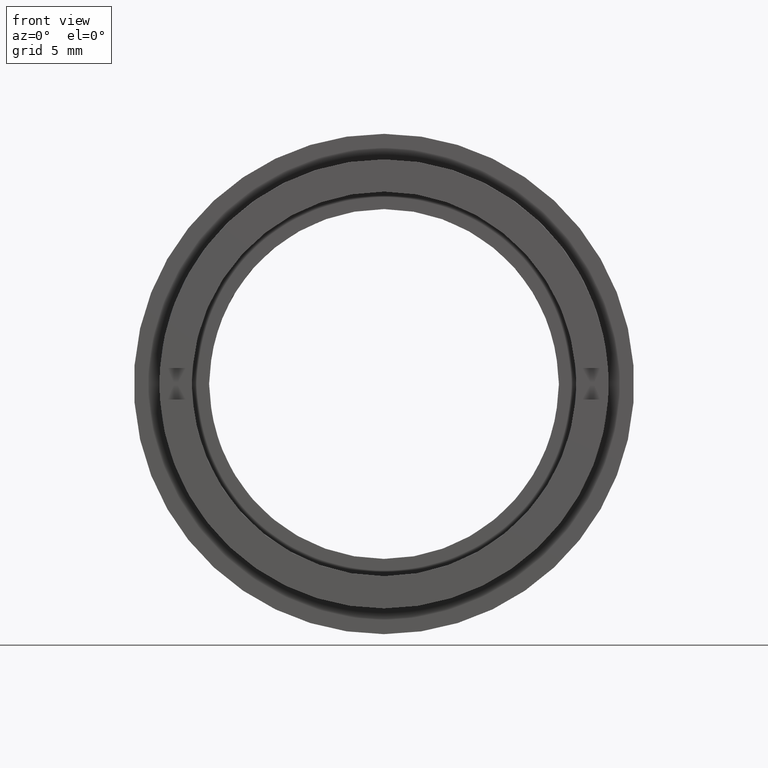
[diagram: clean part render]
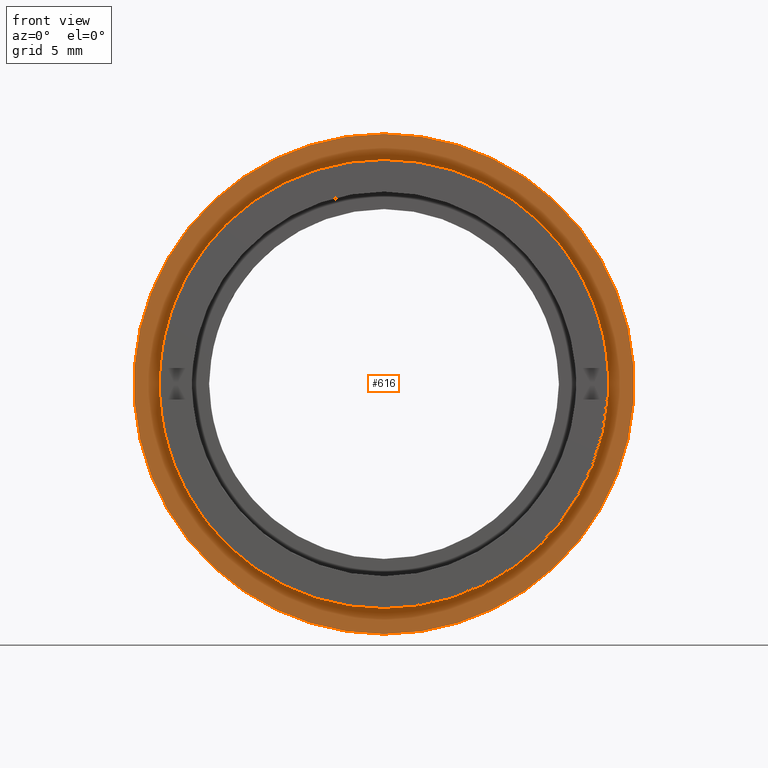
[diagram: same view with one face highlighted and labeled with its STEP entity id]
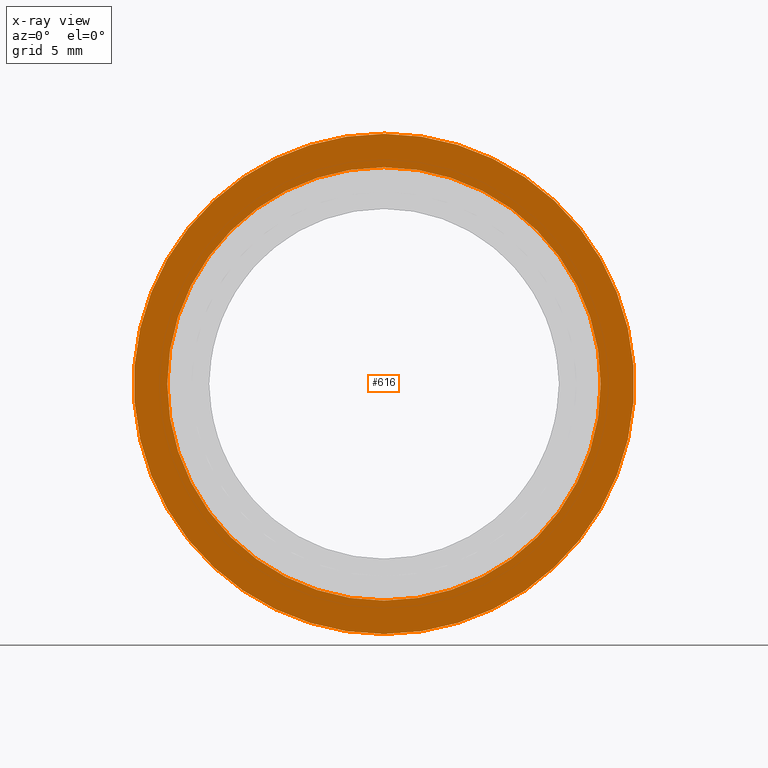
[diagram: x-ray of the same camera — body ghosted, the highlighted face saturated]
A machine part, front view. The second image highlights one B-rep face of the part: STEP entity #616.
The next image is the same camera in x-ray: the body ghosted, the highlighted face saturated — about 0% of this face is hidden behind the body in this view.
In plain terms, the highlighted planar face has unit normal (0, -1, 0).
Its self-contained STEP definition (entity closure, byte-faithful):
#50 = CARTESIAN_POINT ( 'NONE',  ( 0.0000000000000000000, 5.000000000000000900, 0.0000000000000000000 ) ) ;
#96 = VERTEX_POINT ( 'NONE', #678 ) ;
#109 = CIRCLE ( 'NONE', #1270, 15.87499999999999600 ) ;
#151 = CARTESIAN_POINT ( 'NONE',  ( -15.87499999999999600, 5.000000000000000000, 0.0000000000000000000 ) ) ;
#196 = CIRCLE ( 'NONE', #1260, 13.74999999999999800 ) ;
#223 = DIRECTION ( 'NONE',  ( 0.0000000000000000000, 0.0000000000000000000, 1.000000000000000000 ) ) ;
#225 = CARTESIAN_POINT ( 'NONE',  ( 0.0000000000000000000, 5.000000000000000900, 15.87499999999999600 ) ) ;
#267 = DIRECTION ( 'NONE',  ( 0.0000000000000000000, 0.0000000000000000000, 1.000000000000000000 ) ) ;
#269 = DIRECTION ( 'NONE',  ( -0.0000000000000000000, 1.000000000000000000, -0.0000000000000000000 ) ) ;
#275 = CARTESIAN_POINT ( 'NONE',  ( 0.0000000000000000000, 5.000000000000000900, 0.0000000000000000000 ) ) ;
#308 = CARTESIAN_POINT ( 'NONE',  ( 0.0000000000000000000, 5.000000000000000900, 13.74999999999999800 ) ) ;
#387 = DIRECTION ( 'NONE',  ( -0.0000000000000000000, 1.000000000000000000, -0.0000000000000000000 ) ) ;
#434 = EDGE_CURVE ( 'NONE', #1281, #515, #196, .T. ) ;
#450 = DIRECTION ( 'NONE',  ( 0.0000000000000000000, -1.000000000000000000, 0.0000000000000000000 ) ) ;
#453 = CARTESIAN_POINT ( 'NONE',  ( 0.0000000000000000000, 5.000000000000000900, 0.0000000000000000000 ) ) ;
#467 = CIRCLE ( 'NONE', #711, 13.74999999999999800 ) ;
#504 = DIRECTION ( 'NONE',  ( -0.0000000000000000000, 1.000000000000000000, -0.0000000000000000000 ) ) ;
#515 = VERTEX_POINT ( 'NONE', #721 ) ;
#571 = PLANE ( 'NONE',  #1183 ) ;
#576 = DIRECTION ( 'NONE',  ( 0.0000000000000000000, 0.0000000000000000000, 1.000000000000000000 ) ) ;
#607 = EDGE_CURVE ( 'NONE', #96, #1292, #109, .T. ) ;
#616 = ADVANCED_FACE ( 'NONE', ( #1047, #726 ), #571, .T. ) ;
#636 = CIRCLE ( 'NONE', #748, 15.87499999999999600 ) ;
#674 = EDGE_CURVE ( 'NONE', #515, #1281, #467, .T. ) ;
#678 = CARTESIAN_POINT ( 'NONE',  ( 1.944126793646422800E-015, 5.000000000000000900, -15.87499999999999600 ) ) ;
#711 = AXIS2_PLACEMENT_3D ( 'NONE', #453, #387, #1287 ) ;
#721 = CARTESIAN_POINT ( 'NONE',  ( 1.683889348827610500E-015, 5.000000000000000900, -13.74999999999999800 ) ) ;
#722 = ORIENTED_EDGE ( 'NONE', *, *, #434, .T. ) ;
#726 = FACE_OUTER_BOUND ( 'NONE', #824, .T. ) ;
#728 = ORIENTED_EDGE ( 'NONE', *, *, #607, .F. ) ;
#731 = CARTESIAN_POINT ( 'NONE',  ( 0.0000000000000000000, 5.000000000000000900, 0.0000000000000000000 ) ) ;
#748 = AXIS2_PLACEMENT_3D ( 'NONE', #275, #269, #267 ) ;
#824 = EDGE_LOOP ( 'NONE', ( #956, #728 ) ) ;
#871 = EDGE_LOOP ( 'NONE', ( #722, #1263 ) ) ;
#956 = ORIENTED_EDGE ( 'NONE', *, *, #1265, .F. ) ;
#1045 = DIRECTION ( 'NONE',  ( -0.0000000000000000000, 1.000000000000000000, -0.0000000000000000000 ) ) ;
#1047 = FACE_BOUND ( 'NONE', #871, .T. ) ;
#1052 = DIRECTION ( 'NONE',  ( 0.0000000000000000000, -0.0000000000000000000, -1.000000000000000000 ) ) ;
#1183 = AXIS2_PLACEMENT_3D ( 'NONE', #151, #450, #1052 ) ;
#1260 = AXIS2_PLACEMENT_3D ( 'NONE', #731, #504, #576 ) ;
#1263 = ORIENTED_EDGE ( 'NONE', *, *, #674, .T. ) ;
#1265 = EDGE_CURVE ( 'NONE', #1292, #96, #636, .T. ) ;
#1270 = AXIS2_PLACEMENT_3D ( 'NONE', #50, #1045, #223 ) ;
#1281 = VERTEX_POINT ( 'NONE', #308 ) ;
#1287 = DIRECTION ( 'NONE',  ( 0.0000000000000000000, 0.0000000000000000000, 1.000000000000000000 ) ) ;
#1292 = VERTEX_POINT ( 'NONE', #225 ) ;